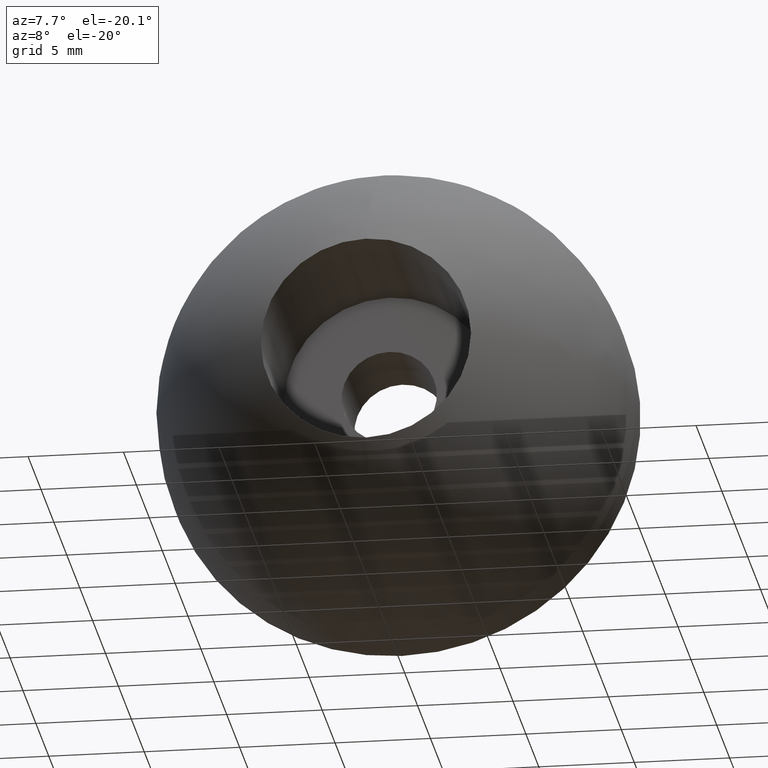
[diagram: clean part render]
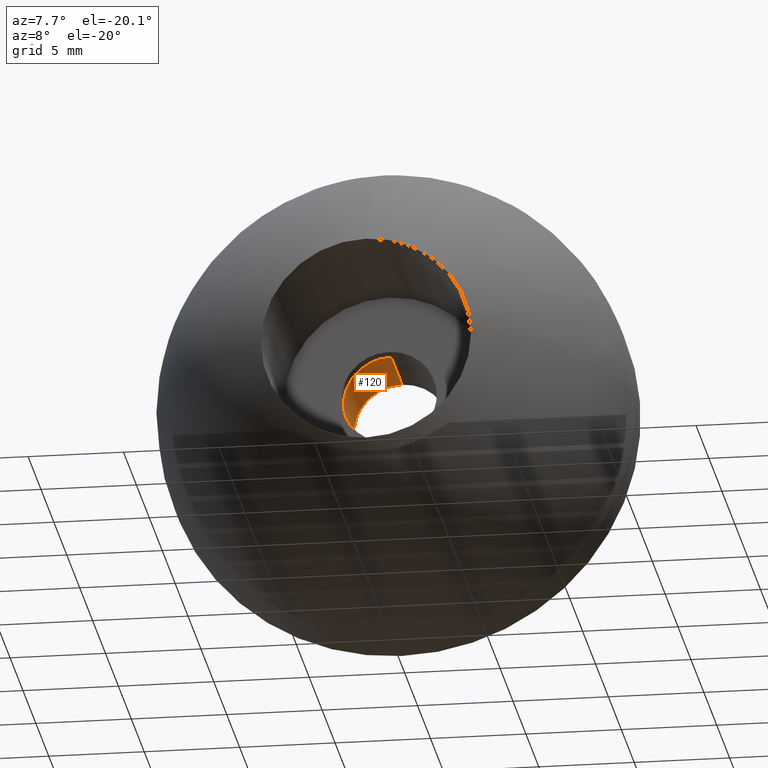
[diagram: same view with one face highlighted and labeled with its STEP entity id]
A machine part, auxiliary view. The second image highlights one B-rep face of the part: STEP entity #120.
In plain terms, the highlighted cylindrical surface (partial cylindrical patch) has radius 2.5 mm, axis along (0, -1, 0).
Its self-contained STEP definition (entity closure, byte-faithful):
#120=ADVANCED_FACE('',(#215),#214,.F.);
#214=CYLINDRICAL_SURFACE('',#394,2.50000000000E+000);
#215=FACE_OUTER_BOUND('',#395,.T.);
#391=CARTESIAN_POINT('',(0.00000000000E+000,1.19000000954E+001,0.00000000000E+000));
#392=DIRECTION('',(0.00000000000E+000,-1.00000000000E+000,-0.00000000000E+000));
#393=DIRECTION('',(-0.00000000000E+000,0.00000000000E+000,-1.00000000000E+000));
#394=AXIS2_PLACEMENT_3D('',#391,#392,#393);
#395=EDGE_LOOP('',(#480,#481,#482,#483));
#480=ORIENTED_EDGE('',*,*,#526,.T.);
#481=ORIENTED_EDGE('',*,*,#544,.F.);
#482=ORIENTED_EDGE('',*,*,#534,.F.);
#483=ORIENTED_EDGE('',*,*,#545,.T.);
#526=EDGE_CURVE('',#576,#577,#578,.T.);
#534=EDGE_CURVE('',#632,#633,#634,.T.);
#544=EDGE_CURVE('',#633,#577,#698,.T.);
#545=EDGE_CURVE('',#632,#576,#704,.T.);
#576=VERTEX_POINT('',#824);
#577=VERTEX_POINT('',#825);
#578=CIRCLE('',#829,2.50000000000E+000);
#632=VERTEX_POINT('',#864);
#633=VERTEX_POINT('',#865);
#634=CIRCLE('',#869,2.50000000000E+000);
#698=(BOUNDED_CURVE() B_SPLINE_CURVE(1,(#904,#905),.UNSPECIFIED.,.F.,.F.) B_SPLINE_CURVE_WITH_KNOTS((2,2),(8.33333313467E-002,9.16666670832E-001),.UNSPECIFIED.) CURVE() GEOMETRIC_REPRESENTATION_ITEM() RATIONAL_B_SPLINE_CURVE((1.00000000000E+000,1.00000000000E+000)) REPRESENTATION_ITEM('') );
#704=(BOUNDED_CURVE() B_SPLINE_CURVE(1,(#906,#907),.UNSPECIFIED.,.F.,.F.) B_SPLINE_CURVE_WITH_KNOTS((2,2),(8.33333333333E-002,9.16666666667E-001),.UNSPECIFIED.) CURVE() GEOMETRIC_REPRESENTATION_ITEM() RATIONAL_B_SPLINE_CURVE((7.50000000000E-001,7.50000000000E-001)) REPRESENTATION_ITEM('') );
#824=CARTESIAN_POINT('',(0.00000000000E+000,9.80000000000E+000,2.50000000000E+000));
#825=CARTESIAN_POINT('',(-4.54181325073E-016,9.80000000000E+000,-2.50000000000E+000));
#826=CARTESIAN_POINT('',(0.00000000000E+000,9.80000000000E+000,0.00000000000E+000));
#827=DIRECTION('',(0.00000000000E+000,-1.00000000000E+000,0.00000000000E+000));
#828=DIRECTION('',(-5.92118946468E-017,-0.00000000000E+000,-1.00000000000E+000));
#829=AXIS2_PLACEMENT_3D('',#826,#827,#828);
#864=CARTESIAN_POINT('',(3.06151588456E-016,1.40000000000E+001,2.50000000000E+000));
#865=CARTESIAN_POINT('',(1.48029736617E-016,1.40000000000E+001,-2.50000000000E+000));
#866=CARTESIAN_POINT('',(0.00000000000E+000,1.40000000000E+001,0.00000000000E+000));
#867=DIRECTION('',(0.00000000000E+000,-1.00000000000E+000,0.00000000000E+000));
#868=DIRECTION('',(-0.00000000000E+000,-0.00000000000E+000,1.00000000000E+000));
#869=AXIS2_PLACEMENT_3D('',#866,#867,#868);
#904=CARTESIAN_POINT('',(0.00000000000E+000,1.40000000100E+001,-2.50000000000E+000));
#905=CARTESIAN_POINT('',(0.00000000000E+000,9.79999997901E+000,-2.50000000000E+000));
#906=CARTESIAN_POINT('',(-1.48029736617E-016,1.40000000000E+001,2.50000000000E+000));
#907=CARTESIAN_POINT('',(-1.48029736617E-016,9.80000000000E+000,2.50000000000E+000));